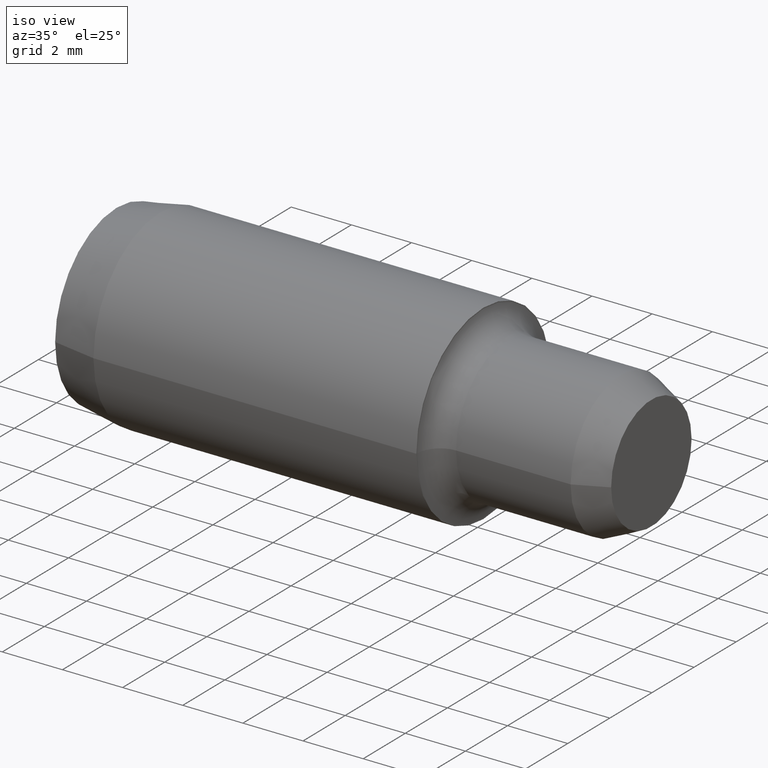
[diagram: clean part render]
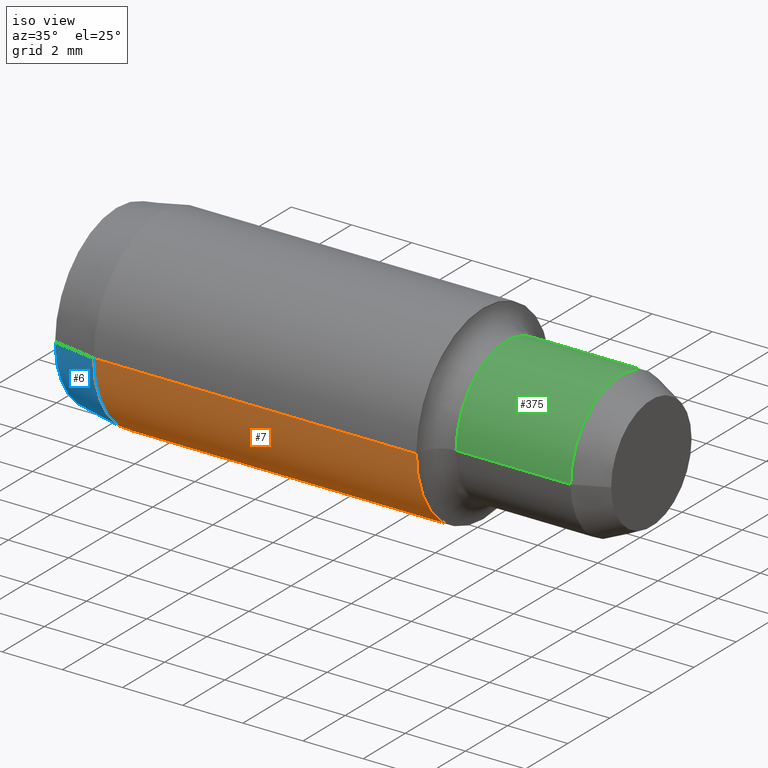
[diagram: same view with three faces highlighted in distinct colors, each labeled with its STEP entity id]
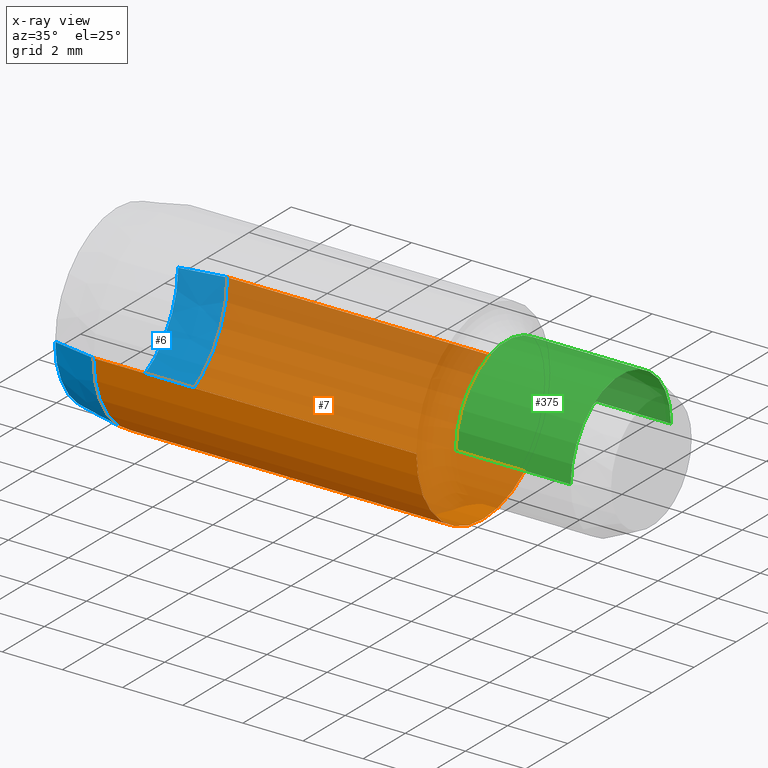
[diagram: x-ray of the same camera — body ghosted, the three highlighted faces saturated]
A machine part, iso view with three faces highlighted in distinct colors.
The next image is the same camera in x-ray (body ghosted, the three faces saturated) — at least one of them is partly hidden behind the body in this view.
Their STEP definitions:

[orange] entity #7 — the highlighted cylindrical surface (partial cylindrical patch) has radius 3.1775 mm, axis along (1, 0, -0).
#7 = ADVANCED_FACE ( 'NONE', ( #232 ), #229, .T. ) ;
#22 = EDGE_CURVE ( 'NONE', #329, #351, #307, .T. ) ;
#27 = EDGE_CURVE ( 'NONE', #329, #228, #295, .T. ) ;
#29 = EDGE_CURVE ( 'NONE', #351, #315, #292, .T. ) ;
#39 = EDGE_CURVE ( 'NONE', #228, #315, #284, .T. ) ;
#48 = AXIS2_PLACEMENT_3D ( 'NONE', #188, #218, #225 ) ;
#62 = AXIS2_PLACEMENT_3D ( 'NONE', #158, #206, #133 ) ;
#64 = AXIS2_PLACEMENT_3D ( 'NONE', #124, #85, #97 ) ;
#79 = CARTESIAN_POINT ( 'NONE',  ( -1.532033145733338200E-017, 0.1250999999999999600, 0.0000000000000000000 ) ) ;
#85 = DIRECTION ( 'NONE',  ( 1.000000000000000000, 1.224646799147353200E-016, -0.0000000000000000000 ) ) ;
#93 = CARTESIAN_POINT ( 'NONE',  ( 1.532033145733338200E-017, -0.1250999999999999600, 1.532033145733338200E-017 ) ) ;
#97 = DIRECTION ( 'NONE',  ( 0.0000000000000000000, 1.000000000000000000, 0.0000000000000000000 ) ) ;
#111 = CARTESIAN_POINT ( 'NONE',  ( 0.4799999999999999300, -0.1250999999999998800, 1.532033145733338200E-017 ) ) ;
#124 = CARTESIAN_POINT ( 'NONE',  ( 0.4799999999999999300, 5.878304635907294700E-017, 0.0000000000000000000 ) ) ;
#133 = DIRECTION ( 'NONE',  ( -1.364832131127230000E-016, 1.000000000000000000, 0.0000000000000000000 ) ) ;
#141 = DIRECTION ( 'NONE',  ( 1.000000000000000000, 1.224646799147353200E-016, -0.0000000000000000000 ) ) ;
#152 = CARTESIAN_POINT ( 'NONE',  ( 0.05727994637813870600, -0.1250999999999999600, 1.532033145733339100E-017 ) ) ;
#158 = CARTESIAN_POINT ( 'NONE',  ( 0.05727994637813868500, 7.014770298731958000E-018, 0.0000000000000000000 ) ) ;
#163 = CARTESIAN_POINT ( 'NONE',  ( 0.05727994637813867100, 0.1250999999999999900, 0.0000000000000000000 ) ) ;
#169 = CARTESIAN_POINT ( 'NONE',  ( 0.4799999999999999300, 0.1250999999999999900, 0.0000000000000000000 ) ) ;
#188 = CARTESIAN_POINT ( 'NONE',  ( 0.0000000000000000000, 0.0000000000000000000, 0.0000000000000000000 ) ) ;
#192 = DIRECTION ( 'NONE',  ( 1.000000000000000000, 1.224646799147353200E-016, -0.0000000000000000000 ) ) ;
#206 = DIRECTION ( 'NONE',  ( 1.000000000000000000, 1.224646799147353200E-016, -0.0000000000000000000 ) ) ;
#218 = DIRECTION ( 'NONE',  ( 1.000000000000000000, 1.224646799147353200E-016, -0.0000000000000000000 ) ) ;
#225 = DIRECTION ( 'NONE',  ( -1.224646799147353000E-016, 1.000000000000000000, 0.0000000000000000000 ) ) ;
#228 = VERTEX_POINT ( 'NONE', #163 ) ;
#229 = CYLINDRICAL_SURFACE ( 'NONE', #48, 0.1250999999999999600 ) ;
#232 = FACE_OUTER_BOUND ( 'NONE', #235, .T. ) ;
#235 = EDGE_LOOP ( 'NONE', ( #242, #278, #357, #340 ) ) ;
#242 = ORIENTED_EDGE ( 'NONE', *, *, #22, .F. ) ;
#267 = VECTOR ( 'NONE', #192, 39.37007874015748100 ) ;
#278 = ORIENTED_EDGE ( 'NONE', *, *, #27, .T. ) ;
#284 = LINE ( 'NONE', #79, #267 ) ;
#292 = CIRCLE ( 'NONE', #64, 0.1250999999999999300 ) ;
#295 = CIRCLE ( 'NONE', #62, 0.1250999999999999900 ) ;
#307 = LINE ( 'NONE', #93, #316 ) ;
#315 = VERTEX_POINT ( 'NONE', #169 ) ;
#316 = VECTOR ( 'NONE', #141, 39.37007874015748100 ) ;
#329 = VERTEX_POINT ( 'NONE', #152 ) ;
#340 = ORIENTED_EDGE ( 'NONE', *, *, #29, .F. ) ;
#351 = VERTEX_POINT ( 'NONE', #111 ) ;
#357 = ORIENTED_EDGE ( 'NONE', *, *, #39, .T. ) ;

[blue] entity #6 — the highlighted conical surface has half-angle 10 deg.
#6 = ADVANCED_FACE ( 'NONE', ( #283 ), #253, .T. ) ;
#12 = EDGE_CURVE ( 'NONE', #254, #352, #313, .T. ) ;
#27 = EDGE_CURVE ( 'NONE', #329, #228, #295, .T. ) ;
#30 = EDGE_CURVE ( 'NONE', #254, #329, #293, .T. ) ;
#38 = EDGE_CURVE ( 'NONE', #352, #228, #285, .T. ) ;
#40 = AXIS2_PLACEMENT_3D ( 'NONE', #217, #210, #209 ) ;
#47 = AXIS2_PLACEMENT_3D ( 'NONE', #201, #84, #82 ) ;
#62 = AXIS2_PLACEMENT_3D ( 'NONE', #158, #206, #133 ) ;
#82 = DIRECTION ( 'NONE',  ( -1.224646799147353200E-016, 1.000000000000000000, 0.0000000000000000000 ) ) ;
#84 = DIRECTION ( 'NONE',  ( 1.000000000000000000, 1.224646799147353200E-016, -0.0000000000000000000 ) ) ;
#91 = DIRECTION ( 'NONE',  ( 0.9848077530122080200, 0.1736481776669307500, 0.0000000000000000000 ) ) ;
#100 = CARTESIAN_POINT ( 'NONE',  ( 7.041719095097280800E-018, 0.1150000000000000000, 0.0000000000000000000 ) ) ;
#122 = CARTESIAN_POINT ( 'NONE',  ( 3.520859547548640700E-017, -0.1150000000000000000, 1.470188482376397500E-017 ) ) ;
#133 = DIRECTION ( 'NONE',  ( -1.364832131127230000E-016, 1.000000000000000000, 0.0000000000000000000 ) ) ;
#152 = CARTESIAN_POINT ( 'NONE',  ( 0.05727994637813870600, -0.1250999999999999600, 1.532033145733339100E-017 ) ) ;
#154 = CARTESIAN_POINT ( 'NONE',  ( 3.520859547548640700E-017, -0.1150000000000000000, 1.408343819019456200E-017 ) ) ;
#158 = CARTESIAN_POINT ( 'NONE',  ( 0.05727994637813868500, 7.014770298731958000E-018, 0.0000000000000000000 ) ) ;
#161 = DIRECTION ( 'NONE',  ( 0.9848077530122080200, -0.1736481776669305300, 2.126576849575775000E-017 ) ) ;
#163 = CARTESIAN_POINT ( 'NONE',  ( 0.05727994637813867100, 0.1250999999999999900, 0.0000000000000000000 ) ) ;
#184 = CARTESIAN_POINT ( 'NONE',  ( 7.041719095097280800E-018, 0.1150000000000000000, 0.0000000000000000000 ) ) ;
#201 = CARTESIAN_POINT ( 'NONE',  ( 2.112515728529184200E-017, 2.587085625091704400E-033, 0.0000000000000000000 ) ) ;
#206 = DIRECTION ( 'NONE',  ( 1.000000000000000000, 1.224646799147353200E-016, -0.0000000000000000000 ) ) ;
#209 = DIRECTION ( 'NONE',  ( -1.224646799147353200E-016, 1.000000000000000000, 0.0000000000000000000 ) ) ;
#210 = DIRECTION ( 'NONE',  ( 1.000000000000000000, 1.224646799147353200E-016, -0.0000000000000000000 ) ) ;
#217 = CARTESIAN_POINT ( 'NONE',  ( 2.112515728529184200E-017, 2.587085625091704400E-033, 0.0000000000000000000 ) ) ;
#228 = VERTEX_POINT ( 'NONE', #163 ) ;
#239 = EDGE_LOOP ( 'NONE', ( #361, #365, #310, #311 ) ) ;
#253 = CONICAL_SURFACE ( 'NONE', #40, 0.1150000000000000000, 0.1745329251994332500 ) ;
#254 = VERTEX_POINT ( 'NONE', #122 ) ;
#268 = VECTOR ( 'NONE', #91, 39.37007874015748100 ) ;
#283 = FACE_OUTER_BOUND ( 'NONE', #239, .T. ) ;
#285 = LINE ( 'NONE', #184, #268 ) ;
#287 = VECTOR ( 'NONE', #161, 39.37007874015748100 ) ;
#293 = LINE ( 'NONE', #154, #287 ) ;
#295 = CIRCLE ( 'NONE', #62, 0.1250999999999999900 ) ;
#310 = ORIENTED_EDGE ( 'NONE', *, *, #38, .T. ) ;
#311 = ORIENTED_EDGE ( 'NONE', *, *, #27, .F. ) ;
#313 = CIRCLE ( 'NONE', #47, 0.1150000000000000000 ) ;
#329 = VERTEX_POINT ( 'NONE', #152 ) ;
#352 = VERTEX_POINT ( 'NONE', #100 ) ;
#361 = ORIENTED_EDGE ( 'NONE', *, *, #30, .F. ) ;
#365 = ORIENTED_EDGE ( 'NONE', *, *, #12, .T. ) ;

[green] entity #375 — the highlighted cylindrical surface (partial cylindrical patch) has radius 2.3838 mm, axis along (1, 0, -0).
#16 = EDGE_CURVE ( 'NONE', #343, #256, #369, .T. ) ;
#17 = EDGE_CURVE ( 'NONE', #256, #336, #255, .T. ) ;
#20 = EDGE_CURVE ( 'NONE', #343, #281, #250, .T. ) ;
#21 = EDGE_CURVE ( 'NONE', #281, #336, #244, .T. ) ;
#56 = AXIS2_PLACEMENT_3D ( 'NONE', #127, #156, #164 ) ;
#58 = AXIS2_PLACEMENT_3D ( 'NONE', #89, #120, #167 ) ;
#70 = AXIS2_PLACEMENT_3D ( 'NONE', #116, #126, #80 ) ;
#80 = DIRECTION ( 'NONE',  ( -1.224646799147353500E-016, 1.000000000000000000, 0.0000000000000000000 ) ) ;
#83 = CARTESIAN_POINT ( 'NONE',  ( 0.6599999999999999200, -0.09384999999999987800, 0.0000000000000000000 ) ) ;
#89 = CARTESIAN_POINT ( 'NONE',  ( 0.6599999999999999200, 8.082668874372529300E-017, 0.0000000000000000000 ) ) ;
#109 = CARTESIAN_POINT ( 'NONE',  ( 0.5100000000000000100, -0.09384999999999994700, 1.149331020999791300E-017 ) ) ;
#116 = CARTESIAN_POINT ( 'NONE',  ( 0.0000000000000000000, 0.0000000000000000000, 0.0000000000000000000 ) ) ;
#120 = DIRECTION ( 'NONE',  ( 1.000000000000000000, 1.224646799147353200E-016, -0.0000000000000000000 ) ) ;
#126 = DIRECTION ( 'NONE',  ( 1.000000000000000000, 1.224646799147353200E-016, -0.0000000000000000000 ) ) ;
#127 = CARTESIAN_POINT ( 'NONE',  ( 0.5100000000000000100, 6.245698675651501100E-017, 0.0000000000000000000 ) ) ;
#146 = CARTESIAN_POINT ( 'NONE',  ( -1.149331020999790800E-017, 0.09384999999999997500, 0.0000000000000000000 ) ) ;
#151 = CARTESIAN_POINT ( 'NONE',  ( 0.6599999999999999200, 0.09385000000000004400, 1.149331020999790400E-017 ) ) ;
#156 = DIRECTION ( 'NONE',  ( 1.000000000000000000, 1.224646799147353200E-016, -0.0000000000000000000 ) ) ;
#164 = DIRECTION ( 'NONE',  ( 0.0000000000000000000, 1.000000000000000000, 0.0000000000000000000 ) ) ;
#167 = DIRECTION ( 'NONE',  ( 0.0000000000000000000, 1.000000000000000000, 0.0000000000000000000 ) ) ;
#172 = CARTESIAN_POINT ( 'NONE',  ( 1.149331020999790800E-017, -0.09384999999999997500, 1.149331020999790800E-017 ) ) ;
#181 = CARTESIAN_POINT ( 'NONE',  ( 0.5100000000000000100, 0.09385000000000008600, 0.0000000000000000000 ) ) ;
#200 = DIRECTION ( 'NONE',  ( 1.000000000000000000, 1.224646799147353200E-016, -0.0000000000000000000 ) ) ;
#207 = DIRECTION ( 'NONE',  ( 1.000000000000000000, 1.224646799147353200E-016, -0.0000000000000000000 ) ) ;
#240 = VECTOR ( 'NONE', #207, 39.37007874015748100 ) ;
#244 = CIRCLE ( 'NONE', #58, 0.09384999999999996100 ) ;
#248 = VECTOR ( 'NONE', #200, 39.37007874015748100 ) ;
#250 = LINE ( 'NONE', #146, #240 ) ;
#255 = LINE ( 'NONE', #172, #248 ) ;
#256 = VERTEX_POINT ( 'NONE', #109 ) ;
#281 = VERTEX_POINT ( 'NONE', #151 ) ;
#286 = CYLINDRICAL_SURFACE ( 'NONE', #70, 0.09384999999999997500 ) ;
#297 = FACE_OUTER_BOUND ( 'NONE', #312, .T. ) ;
#312 = EDGE_LOOP ( 'NONE', ( #368, #367, #359, #323 ) ) ;
#323 = ORIENTED_EDGE ( 'NONE', *, *, #20, .F. ) ;
#336 = VERTEX_POINT ( 'NONE', #83 ) ;
#343 = VERTEX_POINT ( 'NONE', #181 ) ;
#359 = ORIENTED_EDGE ( 'NONE', *, *, #21, .F. ) ;
#367 = ORIENTED_EDGE ( 'NONE', *, *, #17, .T. ) ;
#368 = ORIENTED_EDGE ( 'NONE', *, *, #16, .T. ) ;
#369 = CIRCLE ( 'NONE', #56, 0.09385000000000001700 ) ;
#375 = ADVANCED_FACE ( 'NONE', ( #297 ), #286, .T. ) ;